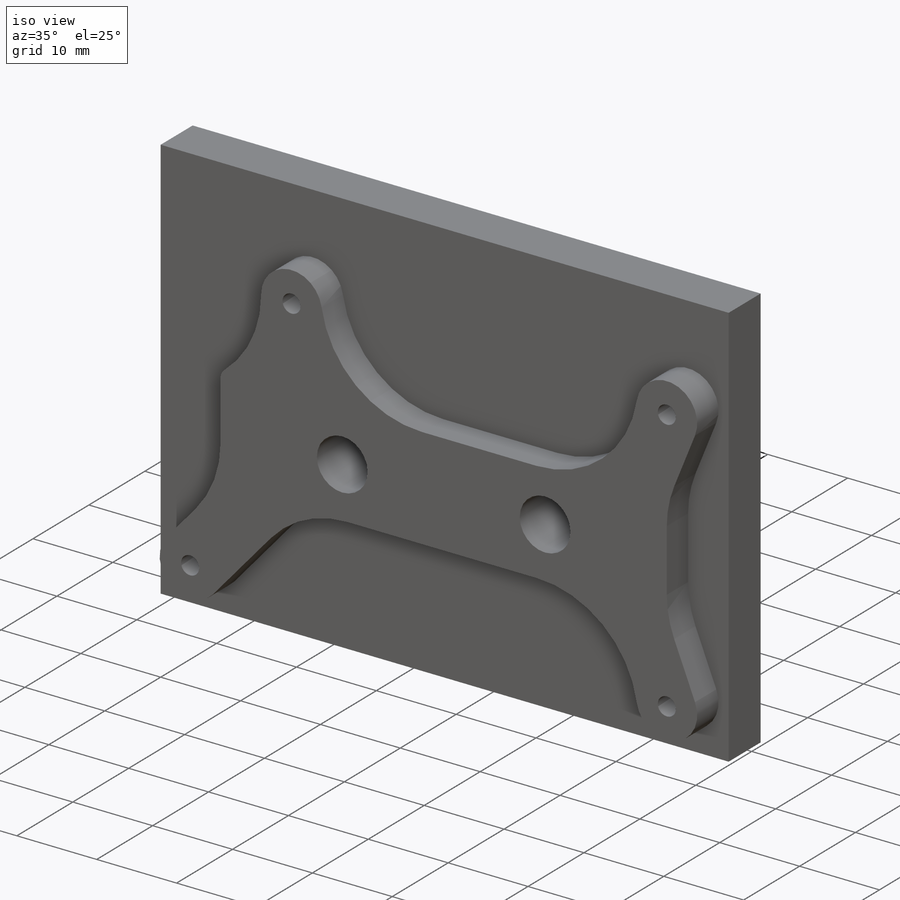
[diagram: iso view]
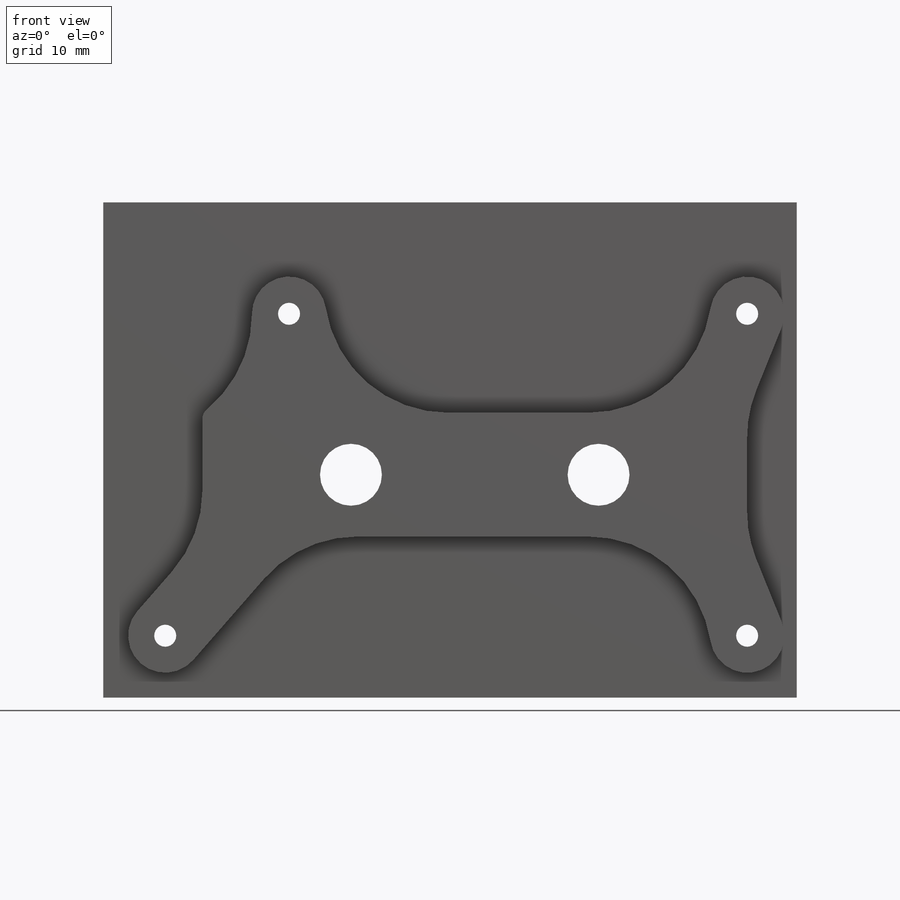
[diagram: front view]
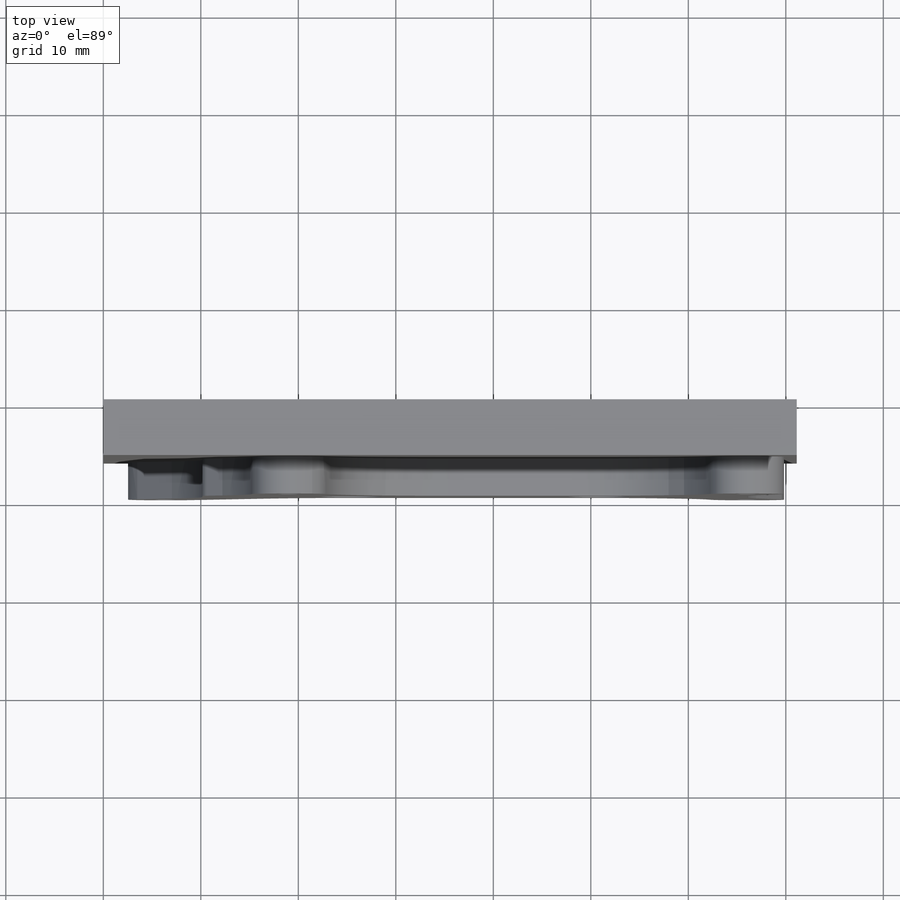
[diagram: top view]
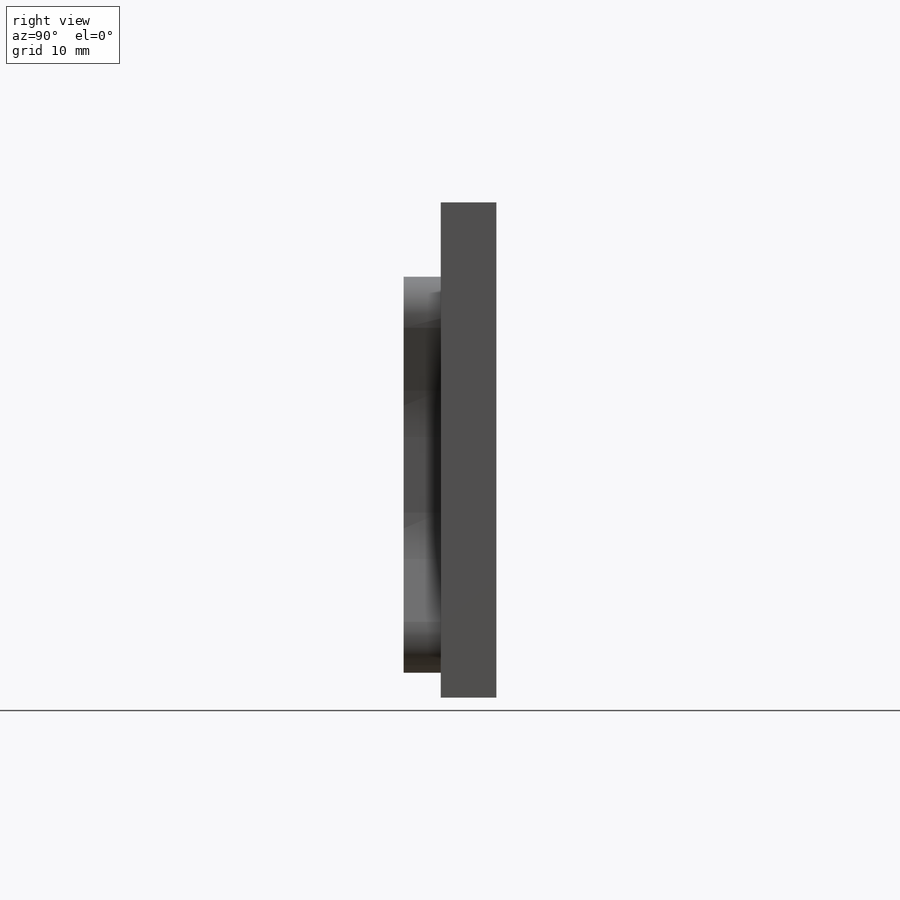
[diagram: right view]
SOLIDWORKS PART (.sldprt)
format: sldprt  version: not decoded by parser v0  size: 419,328 bytes
history: native  units: mm
features: sketch x6, thread x4, extrude x3, fillet x2, material x1, hole x1, cut_extrude x1 (+13 scaffold rows collapsed)
feature tree (31):
  scaffold x13  (default folders/planes/origin — collapsed)
  material  "Material <not specified>"
  sketch  "Sketch1"  dims[c1.D3=1.27mm c1.D1=50.8mm c1.D2=76.2mm c2.D3=~63.925245mm c2.D1=50.8mm c2.D2=71.12mm c2.D4=5.08mm c2.D5=6.35mm c2.D6=6.35mm c2.D7=3.81mm c2.D8=12.7mm c3.D3=59.69mm c3.D4=33.02mm c3.D5=5.08mm c3.D6=8.89mm c4.D5=6.35mm c4.D6=~8.980256mm c5.D6=90.0deg c6.D6=6.35mm]
  extrude  "Boss-Extrude1"  Depth=5.715mm
  sketch  "Sketch3"  dims[c1.D1=7.62mm c1.D2=11.938mm c1.D3=12.7mm c1.D4=16.256mm c1.D5=55.88mm c2.D2=3.81mm c2.D4=10.16mm]
  extrude  "Boss-Extrude2"  Depth=3.81mm
  hole  "#4-40 Tapped Hole1"  Diameter=2.2606mm Depth=9.525mm
  sketch  "Sketch6"
  sketch  "Sketch5"  dims[hole-wizard template sketch: 60 standard entries collapsed; hole parameters kept: c18.Thru Tap Drill Depth=9.525mm]
  thread  "Hole Thread1"  Diameter=2.8448mm  [1 undecoded]
  thread  "Hole Thread2"  Diameter=2.8448mm  [1 undecoded]
  thread  "Hole Thread3"  Diameter=2.8448mm  [1 undecoded]
  thread  "Hole Thread4"  Diameter=2.8448mm  [1 undecoded]
  sketch  "Sketch7"
  extrude  "Boss-Extrude4"  [1 undecoded]
  fillet  "Fillet1"  Radius=12.7mm
  fillet  "Fillet2"  Radius=1.27mm
  sketch  "Sketch9"  dims[c1.D2=6.35mm c1.D1=12.7mm c2.D2=~9.910185mm]
  cut_extrude  "Cut-Extrude1"  Depth=2.54mm
decode coverage: 14 of 17 modeling features carry decoded parameters
note: ~ marks probable driven/reference dimensions
note: 5 parameter values undecoded
note: suppression state not decoded; provenance and decode notes live in map.json
